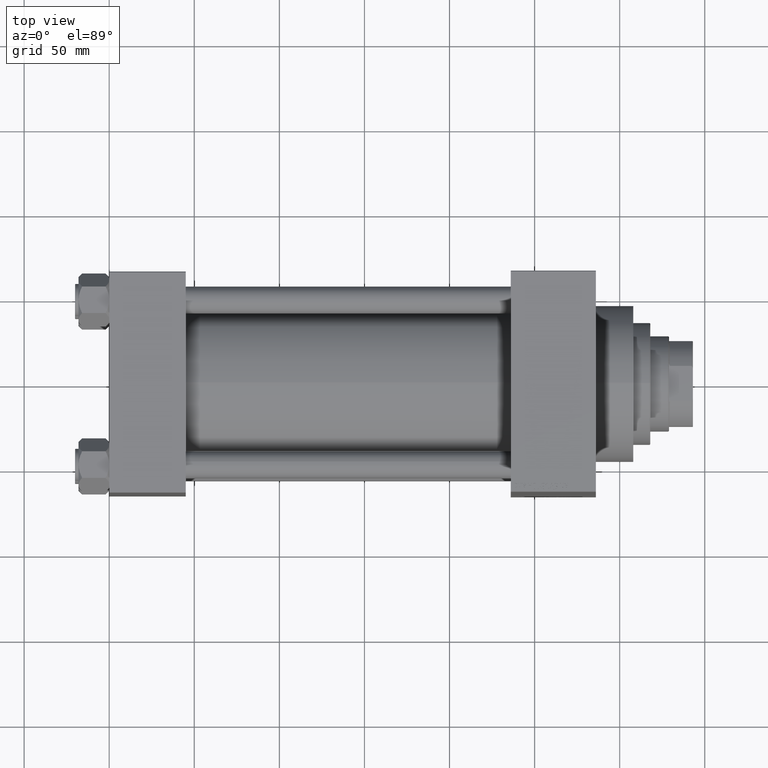
[diagram: clean part render]
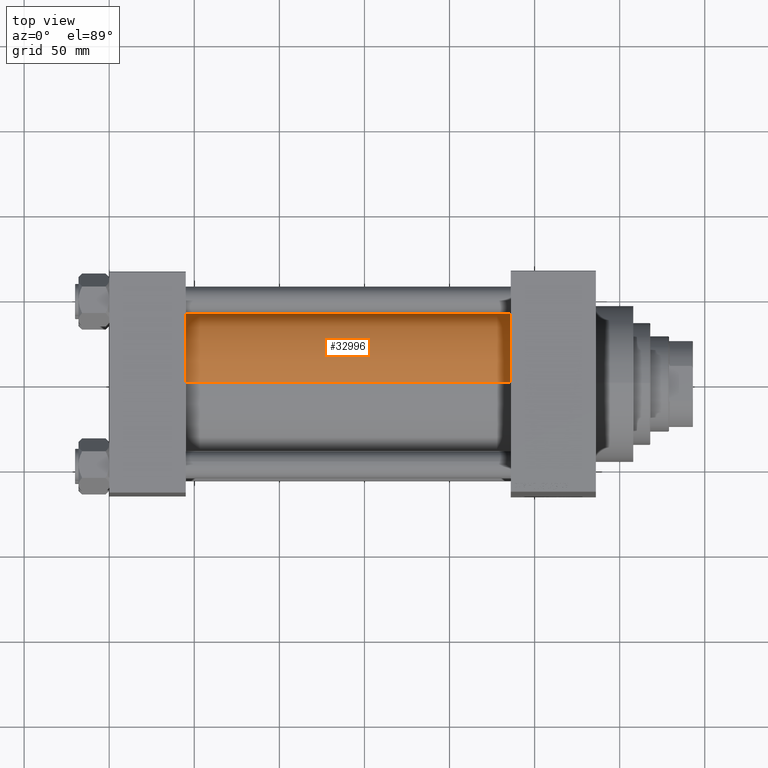
[diagram: same view with one face highlighted and labeled with its STEP entity id]
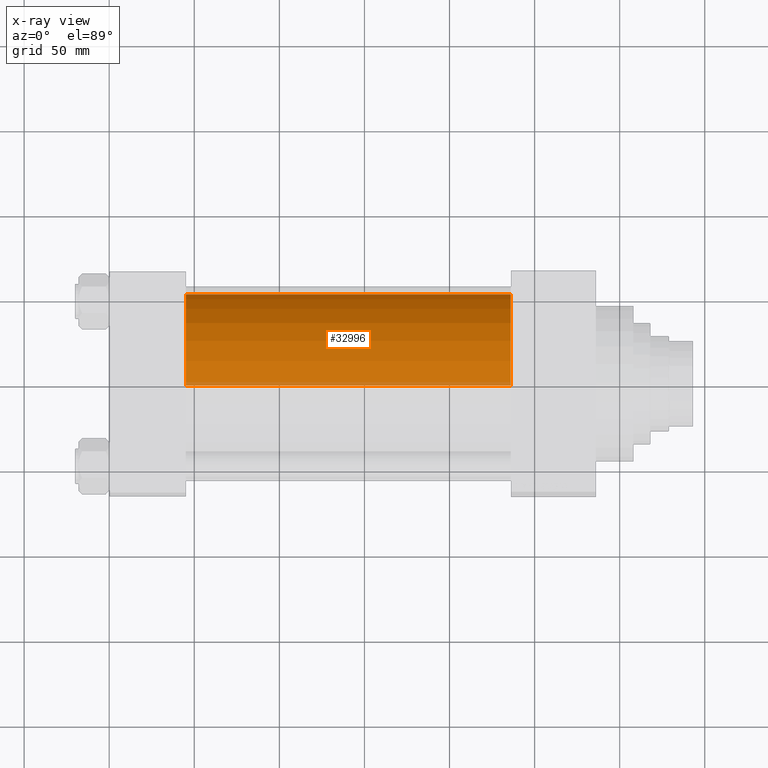
[diagram: x-ray of the same camera — body ghosted, the highlighted face saturated]
A machine part, top view. The second image highlights one B-rep face of the part: STEP entity #32996.
The next image is the same camera in x-ray: the body ghosted, the highlighted face saturated — about 5% of this face is hidden behind the body in this view.
In plain terms, the highlighted cylindrical surface (partial cylindrical patch) has radius 53 mm, axis along (-1, -0, -0).
Its self-contained STEP definition (entity closure, byte-faithful):
#229 = ORIENTED_EDGE ( 'NONE', *, *, #10859, .F. ) ;
#268 = CIRCLE ( 'NONE', #31843, 53.00000000000000711 ) ;
#844 = FACE_OUTER_BOUND ( 'NONE', #34704, .T. ) ;
#1269 = ORIENTED_EDGE ( 'NONE', *, *, #6758, .T. ) ;
#2469 = DIRECTION ( 'NONE',  ( -1.000000000000000000, -0.000000000000000000, -0.000000000000000000 ) ) ;
#3230 = AXIS2_PLACEMENT_3D ( 'NONE', #29596, #11939, #30524 ) ;
#5149 = ORIENTED_EDGE ( 'NONE', *, *, #26062, .F. ) ;
#5352 = VERTEX_POINT ( 'NONE', #18993 ) ;
#6758 = EDGE_CURVE ( 'NONE', #23322, #43616, #32586, .T. ) ;
#8867 = ORIENTED_EDGE ( 'NONE', *, *, #23147, .T. ) ;
#10859 = EDGE_CURVE ( 'NONE', #23907, #5352, #268, .T. ) ;
#10913 = DIRECTION ( 'NONE',  ( 1.000000000000000000, 0.000000000000000000, 0.000000000000000000 ) ) ;
#11939 = DIRECTION ( 'NONE',  ( -1.000000000000000000, -0.000000000000000000, -0.000000000000000000 ) ) ;
#13414 = CARTESIAN_POINT ( 'NONE',  ( 44.99999999999998579, 3.888542821515762466E-15, -53.00000000000000711 ) ) ;
#13809 = DIRECTION ( 'NONE',  ( 0.000000000000000000, 0.000000000000000000, -1.000000000000000000 ) ) ;
#13830 = CARTESIAN_POINT ( 'NONE',  ( 44.99999999999998579, -2.602085213965210642E-15, 0.000000000000000000 ) ) ;
#15572 = CYLINDRICAL_SURFACE ( 'NONE', #3230, 53.00000000000000711 ) ;
#17885 = DIRECTION ( 'NONE',  ( -1.000000000000000000, -0.000000000000000000, -0.000000000000000000 ) ) ;
#18993 = CARTESIAN_POINT ( 'NONE',  ( 236.0000000000000000, -2.602085213965210642E-15, 53.00000000000000711 ) ) ;
#21816 = AXIS2_PLACEMENT_3D ( 'NONE', #13830, #42790, #47140 ) ;
#23147 = EDGE_CURVE ( 'NONE', #23907, #23322, #26500, .T. ) ;
#23322 = VERTEX_POINT ( 'NONE', #13414 ) ;
#23907 = VERTEX_POINT ( 'NONE', #28516 ) ;
#24692 = LINE ( 'NONE', #28788, #38365 ) ;
#26062 = EDGE_CURVE ( 'NONE', #5352, #43616, #24692, .T. ) ;
#26500 = LINE ( 'NONE', #30121, #31314 ) ;
#28516 = CARTESIAN_POINT ( 'NONE',  ( 236.0000000000000000, 3.888542821515762466E-15, -53.00000000000000711 ) ) ;
#28788 = CARTESIAN_POINT ( 'NONE',  ( 236.0000000000000000, -2.602085213965210642E-15, 53.00000000000000711 ) ) ;
#29009 = CARTESIAN_POINT ( 'NONE',  ( 236.0000000000000000, -2.602085213965210642E-15, 0.000000000000000000 ) ) ;
#29596 = CARTESIAN_POINT ( 'NONE',  ( 236.0000000000000000, -2.602085213965210642E-15, 0.000000000000000000 ) ) ;
#30121 = CARTESIAN_POINT ( 'NONE',  ( 236.0000000000000000, 3.888542821515762466E-15, -53.00000000000000711 ) ) ;
#30524 = DIRECTION ( 'NONE',  ( 0.000000000000000000, 0.000000000000000000, 1.000000000000000000 ) ) ;
#31314 = VECTOR ( 'NONE', #17885, 1000.000000000000000 ) ;
#31843 = AXIS2_PLACEMENT_3D ( 'NONE', #29009, #10913, #13809 ) ;
#32586 = CIRCLE ( 'NONE', #21816, 53.00000000000000711 ) ;
#32996 = ADVANCED_FACE ( 'NONE', ( #844 ), #15572, .T. ) ;
#34704 = EDGE_LOOP ( 'NONE', ( #229, #8867, #1269, #5149 ) ) ;
#36276 = CARTESIAN_POINT ( 'NONE',  ( 44.99999999999998579, -2.602085213965210642E-15, 53.00000000000000711 ) ) ;
#38365 = VECTOR ( 'NONE', #2469, 1000.000000000000000 ) ;
#42790 = DIRECTION ( 'NONE',  ( 1.000000000000000000, -0.000000000000000000, 0.000000000000000000 ) ) ;
#43616 = VERTEX_POINT ( 'NONE', #36276 ) ;
#47140 = DIRECTION ( 'NONE',  ( 0.000000000000000000, 0.000000000000000000, 1.000000000000000000 ) ) ;